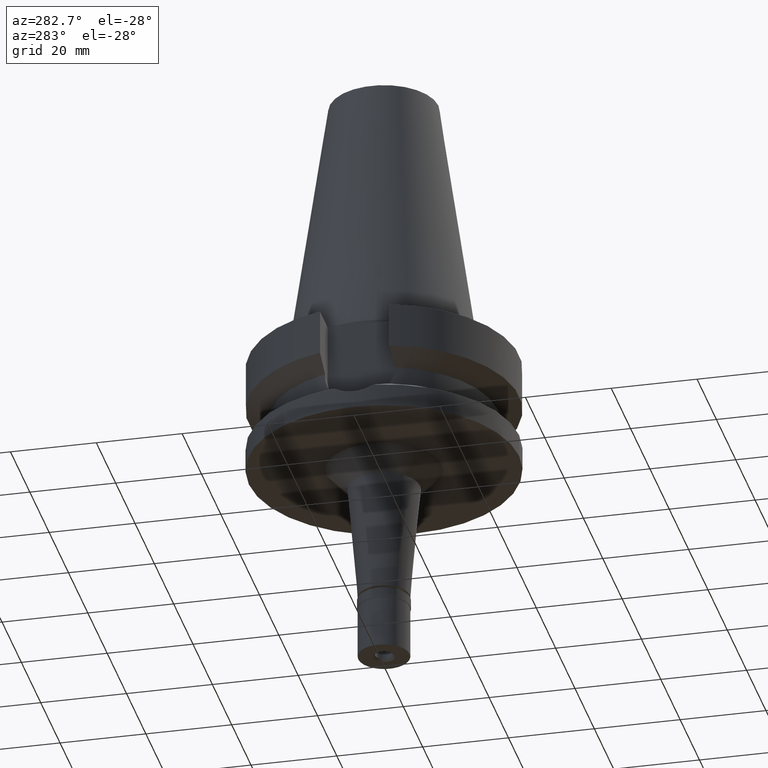
[diagram: clean part render]
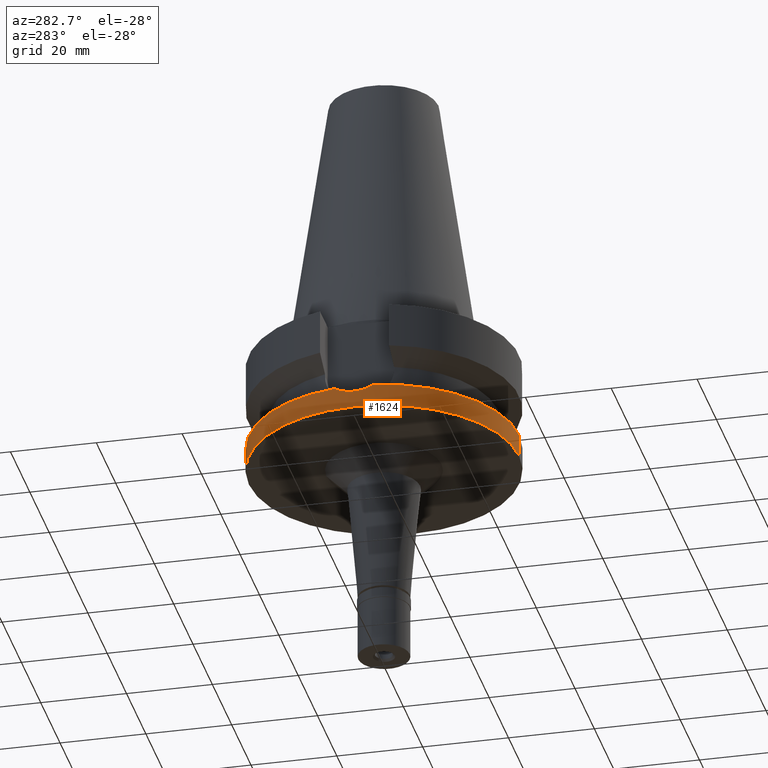
[diagram: same view with one face highlighted and labeled with its STEP entity id]
A machine part, auxiliary view. The second image highlights one B-rep face of the part: STEP entity #1624.
In plain terms, the highlighted cylindrical surface (partial cylindrical patch) has radius 31.5 mm, axis along (0, 0, -1).
Its self-contained STEP definition (entity closure, byte-faithful):
#6 = EDGE_LOOP ( 'NONE', ( #359, #2701, #1795, #417, #2026, #579 ) ) ;
#13 = CYLINDRICAL_SURFACE ( 'NONE', #645, 31.50000000000000000 ) ;
#27 = FACE_OUTER_BOUND ( 'NONE', #6, .T. ) ;
#194 = DIRECTION ( 'NONE',  ( 0.0000000000000000000, 0.0000000000000000000, -1.000000000000000000 ) ) ;
#219 = CARTESIAN_POINT ( 'NONE',  ( -31.40732536569331046, 2.414664100631994881, -22.62934834046404831 ) ) ;
#315 = CARTESIAN_POINT ( 'NONE',  ( -31.50024232868986473, 0.7571333964023347907, -23.00095759426203657 ) ) ;
#333 = DIRECTION ( 'NONE',  ( 0.0000000000000000000, 0.0000000000000000000, -1.000000000000000000 ) ) ;
#359 = ORIENTED_EDGE ( 'NONE', *, *, #914, .T. ) ;
#402 = VERTEX_POINT ( 'NONE', #2468 ) ;
#417 = ORIENTED_EDGE ( 'NONE', *, *, #2640, .F. ) ;
#434 = DIRECTION ( 'NONE',  ( 0.0000000000000000000, -1.000000000000000000, 0.0000000000000000000 ) ) ;
#447 = CARTESIAN_POINT ( 'NONE',  ( -31.33704727451169703, 3.201741485571699908, -22.33858232039722225 ) ) ;
#535 = CARTESIAN_POINT ( 'NONE',  ( -31.46161069947296696, -1.564500927451142331, -22.84904545394922692 ) ) ;
#558 = CARTESIAN_POINT ( 'NONE',  ( 0.0000000000000000000, -31.50000000000000000, -21.63449434733000132 ) ) ;
#579 = ORIENTED_EDGE ( 'NONE', *, *, #1133, .F. ) ;
#645 = AXIS2_PLACEMENT_3D ( 'NONE', #2761, #194, #434 ) ;
#695 = VERTEX_POINT ( 'NONE', #2844 ) ;
#704 = CARTESIAN_POINT ( 'NONE',  ( -31.35484698255503488, 3.022878705305126701, -22.41324384625883326 ) ) ;
#733 = DIRECTION ( 'NONE',  ( 0.0000000000000000000, 1.099151708819000049E-13, -1.000000000000000000 ) ) ;
#744 = CARTESIAN_POINT ( 'NONE',  ( 0.0000000000000000000, 31.50000000000000000, -21.63449434733000132 ) ) ;
#779 = CARTESIAN_POINT ( 'NONE',  ( -31.41623505044934106, -2.295962347406143245, -22.66567875136769317 ) ) ;
#806 = VERTEX_POINT ( 'NONE', #744 ) ;
#914 = EDGE_CURVE ( 'NONE', #402, #806, #990, .T. ) ;
#923 = CARTESIAN_POINT ( 'NONE',  ( -31.40238352135590105, 2.478482150265192807, -22.60918600287573810 ) ) ;
#957 = CARTESIAN_POINT ( 'NONE',  ( -31.28470547692919368, -3.750768100138566208, -22.12755020539583484 ) ) ;
#967 = CARTESIAN_POINT ( 'NONE',  ( 0.0000000000000000000, 2.109086717491999768E-14, -27.00000000000000000 ) ) ;
#988 = AXIS2_PLACEMENT_3D ( 'NONE', #2482, #2769, #1350 ) ;
#990 = CIRCLE ( 'NONE', #2682, 31.50000000000001421 ) ;
#995 = VERTEX_POINT ( 'NONE', #2716 ) ;
#998 = CARTESIAN_POINT ( 'NONE',  ( -31.41974700004597665, -2.247358039305837440, -22.67997564926185206 ) ) ;
#1080 = EDGE_CURVE ( 'NONE', #2742, #695, #1851, .T. ) ;
#1133 = EDGE_CURVE ( 'NONE', #402, #695, #2517, .T. ) ;
#1180 = DIRECTION ( 'NONE',  ( 0.0000000000000000000, 0.0000000000000000000, 1.000000000000000000 ) ) ;
#1235 = CARTESIAN_POINT ( 'NONE',  ( -31.41425586186306163, -2.322858716144244440, -22.65761362938235024 ) ) ;
#1242 = EDGE_CURVE ( 'NONE', #995, #1480, #1475, .T. ) ;
#1306 = VECTOR ( 'NONE', #1476, 1000.000000000000000 ) ;
#1347 = CARTESIAN_POINT ( 'NONE',  ( 0.0000000000000000000, -31.50000000000000000, -27.00000000000000000 ) ) ;
#1350 = DIRECTION ( 'NONE',  ( 0.0000000000000000000, -1.000000000000000000, 0.0000000000000000000 ) ) ;
#1369 = LINE ( 'NONE', #2293, #2224 ) ;
#1454 = CARTESIAN_POINT ( 'NONE',  ( -31.49987638199702644, -0.3937373737348606184, -22.99951167286951659 ) ) ;
#1475 = CIRCLE ( 'NONE', #2636, 31.50000000000000000 ) ;
#1476 = DIRECTION ( 'NONE',  ( 0.0000000000000000000, -1.105773104655000034E-13, -1.000000000000000000 ) ) ;
#1480 = VERTEX_POINT ( 'NONE', #1347 ) ;
#1490 = CARTESIAN_POINT ( 'NONE',  ( 0.0000000000000000000, 0.0000000000000000000, -21.63449434733000132 ) ) ;
#1604 = EDGE_CURVE ( 'NONE', #806, #995, #1369, .T. ) ;
#1612 = CARTESIAN_POINT ( 'NONE',  ( -31.47150128874048747, 1.550917995547160144, -22.89093254494475715 ) ) ;
#1624 = ADVANCED_FACE ( 'NONE', ( #27 ), #13, .T. ) ;
#1675 = CARTESIAN_POINT ( 'NONE',  ( -31.42493032681629828, -2.174413258155504014, -22.70105836180822934 ) ) ;
#1689 = CARTESIAN_POINT ( 'NONE',  ( -31.17899877608999759, -4.485536235554000051, -21.63449434733000132 ) ) ;
#1795 = ORIENTED_EDGE ( 'NONE', *, *, #1242, .T. ) ;
#1826 = CARTESIAN_POINT ( 'NONE',  ( -31.41056491124590622, 2.372237050536428526, -22.64256036889742063 ) ) ;
#1851 = CIRCLE ( 'NONE', #988, 31.50000000000000000 ) ;
#1911 = LINE ( 'NONE', #558, #1306 ) ;
#2026 = ORIENTED_EDGE ( 'NONE', *, *, #1080, .T. ) ;
#2097 = CARTESIAN_POINT ( 'NONE',  ( -31.44527646887208761, -1.857544946879634784, -22.78339309170742766 ) ) ;
#2138 = CARTESIAN_POINT ( 'NONE',  ( -31.49253540246490246, -0.7829780335585256879, -22.97155374604112765 ) ) ;
#2210 = DIRECTION ( 'NONE',  ( -0.9898094849552905306, 0.1423979757318985240, 0.0000000000000000000 ) ) ;
#2224 = VECTOR ( 'NONE', #733, 1000.000000000000000 ) ;
#2274 = CARTESIAN_POINT ( 'NONE',  ( -31.23220374066003302, 4.115708095068812078, -21.88266233714350406 ) ) ;
#2289 = CARTESIAN_POINT ( 'NONE',  ( -31.37890571234752102, 2.759253316058425831, -22.51292583804361058 ) ) ;
#2293 = CARTESIAN_POINT ( 'NONE',  ( 0.0000000000000000000, 31.50000000000000000, -21.63449434733000132 ) ) ;
#2342 = CARTESIAN_POINT ( 'NONE',  ( 0.0000000000000000000, -31.50000000000000000, -21.63449434733000132 ) ) ;
#2468 = CARTESIAN_POINT ( 'NONE',  ( -31.17899877608999759, 4.485536235554000051, -21.63449434733000132 ) ) ;
#2482 = CARTESIAN_POINT ( 'NONE',  ( 0.0000000000000000000, 0.0000000000000000000, -21.63449434733000132 ) ) ;
#2507 = CARTESIAN_POINT ( 'NONE',  ( -31.27836648583670609, 3.744813399156333933, -22.08709055486672668 ) ) ;
#2517 = B_SPLINE_CURVE_WITH_KNOTS ( 'NONE', 3,
 ( #2545, #2274, #2507, #447, #704, #2289, #2749, #923, #219, #1826, #2757, #1612, #315, #1454, #2138, #2575, #535, #2097, #2811, #1675, #998, #779, #1235, #2841, #957, #1689 ),
 .UNSPECIFIED., .F., .F.,
 ( 4, 2, 2, 1, 1, 2, 2, 2, 2, 2, 1, 1, 2, 2, 4 ),
 ( 0.0000000000000000000, 0.1249999999999988898, 0.1874999999999982236, 0.2187499999999978906, 0.2343749999999979738, 0.2421874999999980849, 0.2499999999999982236, 0.5000000000000021094, 0.6250000000000039968, 0.6875000000000049960, 0.7187500000000053291, 0.7343750000000054401, 0.7421875000000054401, 0.7500000000000053291, 1.000000000000000000 ),
 .UNSPECIFIED. ) ;
#2545 = CARTESIAN_POINT ( 'NONE',  ( -31.17899877608999759, 4.485536235554000051, -21.63449434733000132 ) ) ;
#2575 = CARTESIAN_POINT ( 'NONE',  ( -31.47069543721493190, -1.368873748123940803, -22.88521609265383461 ) ) ;
#2589 = DIRECTION ( 'NONE',  ( 0.0000000000000000000, 1.000000000000000000, 0.0000000000000000000 ) ) ;
#2636 = AXIS2_PLACEMENT_3D ( 'NONE', #967, #1180, #2589 ) ;
#2640 = EDGE_CURVE ( 'NONE', #2742, #1480, #1911, .T. ) ;
#2682 = AXIS2_PLACEMENT_3D ( 'NONE', #1490, #333, #2210 ) ;
#2701 = ORIENTED_EDGE ( 'NONE', *, *, #1604, .T. ) ;
#2716 = CARTESIAN_POINT ( 'NONE',  ( 0.0000000000000000000, 31.50000000000000000, -27.00000000000000000 ) ) ;
#2742 = VERTEX_POINT ( 'NONE', #2342 ) ;
#2749 = CARTESIAN_POINT ( 'NONE',  ( -31.39027486917565213, 2.628603510748834360, -22.55969012852044031 ) ) ;
#2757 = CARTESIAN_POINT ( 'NONE',  ( -31.41196838671982761, 2.353633167411838034, -22.64828270923954179 ) ) ;
#2761 = CARTESIAN_POINT ( 'NONE',  ( 0.0000000000000000000, 2.109086717491999768E-14, 72.22000000000001307 ) ) ;
#2769 = DIRECTION ( 'NONE',  ( 0.0000000000000000000, 0.0000000000000000000, -1.000000000000000000 ) ) ;
#2811 = CARTESIAN_POINT ( 'NONE',  ( -31.43643257257468804, -2.003966855020183235, -22.74771882456179384 ) ) ;
#2841 = CARTESIAN_POINT ( 'NONE',  ( -31.36260275698609590, -3.014870738500426750, -22.44700345726869628 ) ) ;
#2844 = CARTESIAN_POINT ( 'NONE',  ( -31.17899877608999759, -4.485536235554000051, -21.63449434733000132 ) ) ;